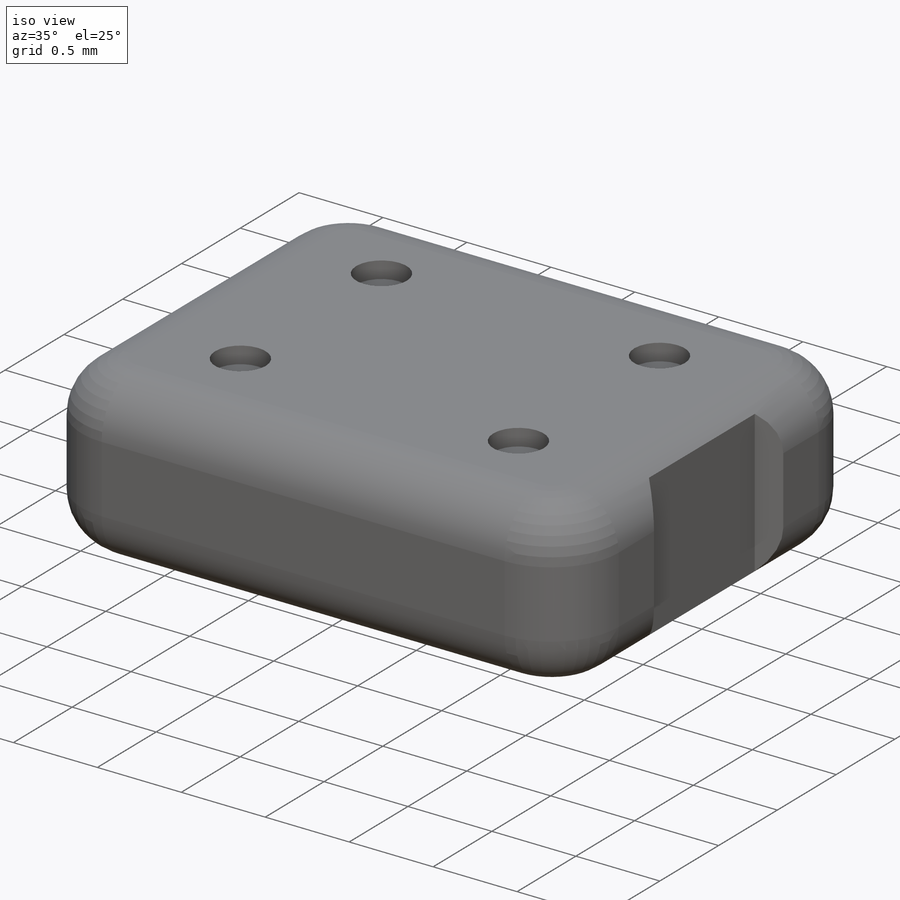
[diagram: iso view]
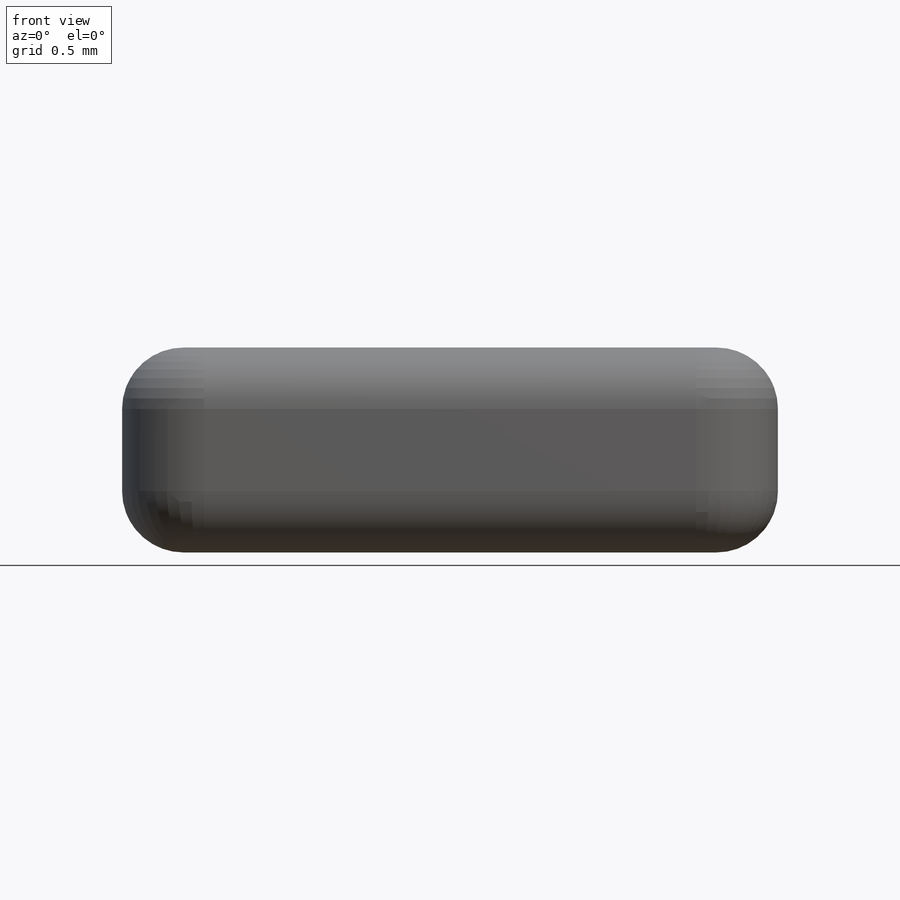
[diagram: front view]
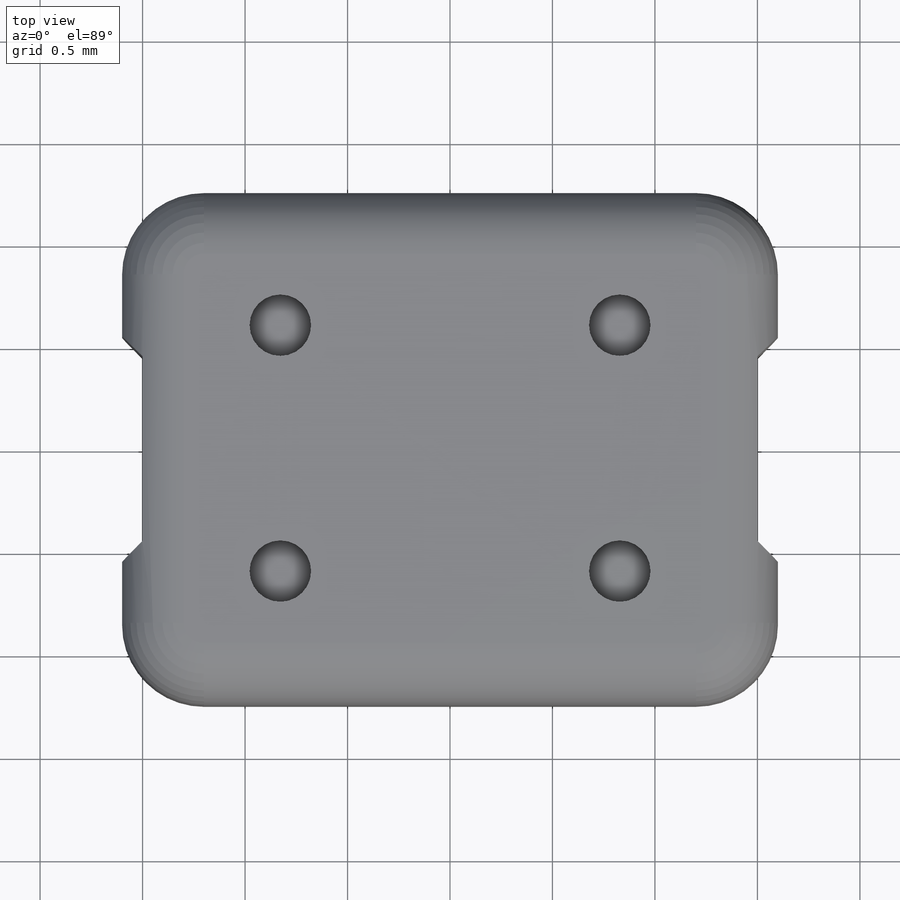
[diagram: top view]
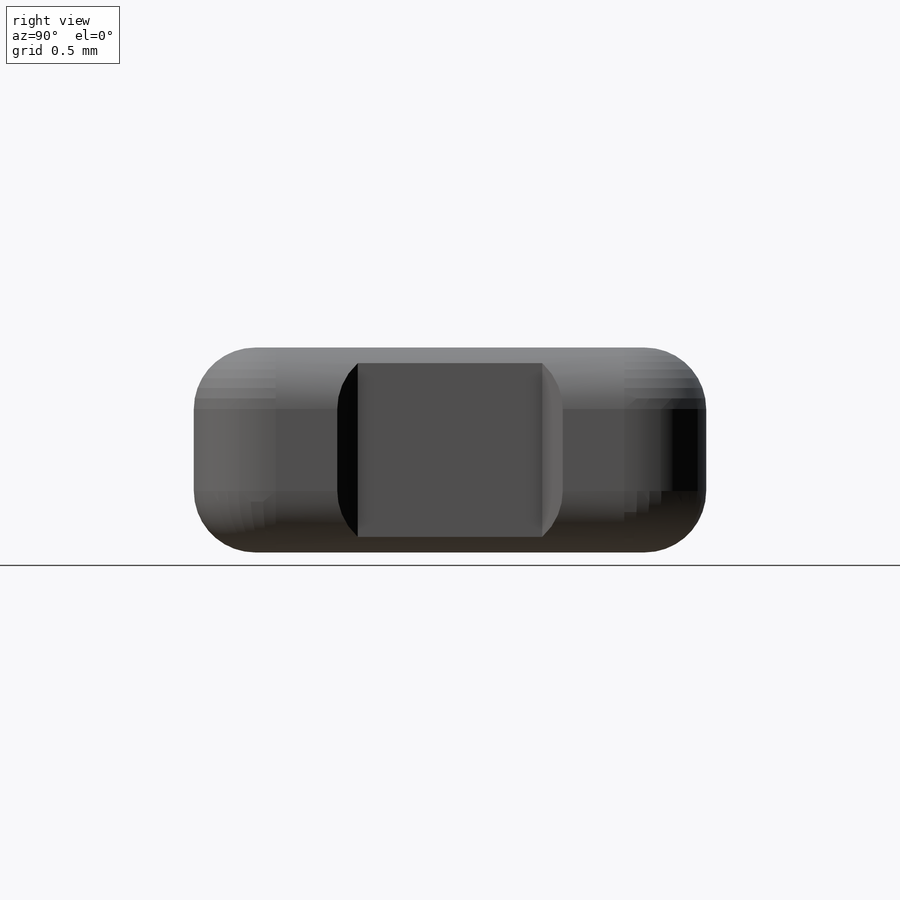
[diagram: right view]
SOLIDWORKS PART (.sldprt)
format: sldprt  version: not decoded by parser v0  size: 236,544 bytes
history: native  units: mm
features: sketch x2, material x1, extrude x1, fillet x1, cut_extrude x1 (+16 scaffold rows collapsed)
feature tree (22):
  scaffold x16  (default folders/planes/origin — collapsed)
  material  "Material <not specified>"
  sketch  "Sketch1"  dims[D3=0.4mm D1=3.2mm D2=2.5mm D4=0.9mm D5=1.1mm D6=0.1mm]
  extrude  "Boss-Extrude1"  Depth=1mm
  fillet  "Fillet2"  Radius=0.3mm
  sketch  "Sketch2"  dims[D1=0.3mm D2=1.2mm]
  cut_extrude  "Cut-Extrude1"  Depth=0.1mm
decode coverage: 5 of 5 modeling features carry decoded parameters
note: suppression state not decoded; provenance and decode notes live in map.json
